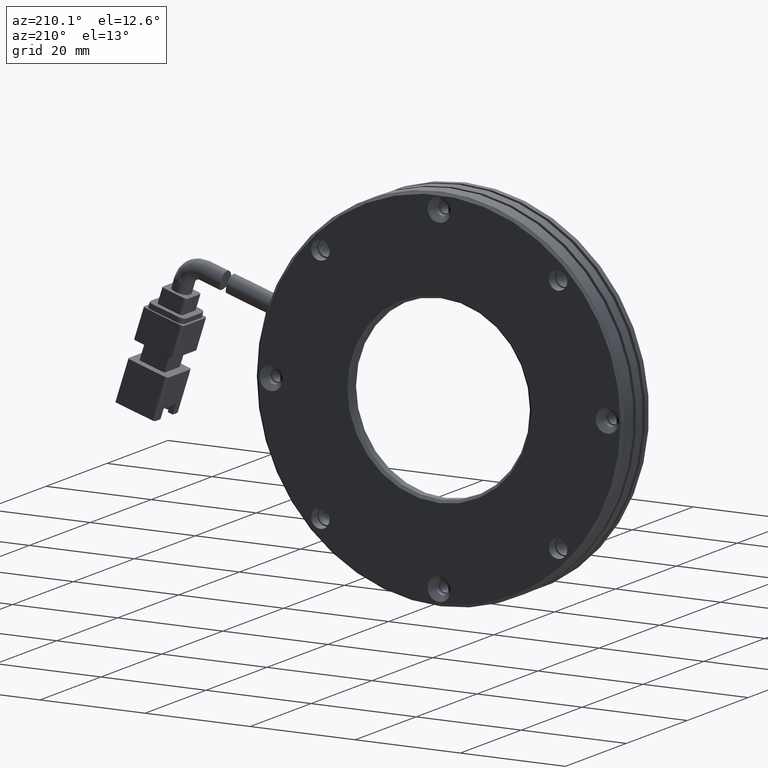
[diagram: clean part render]
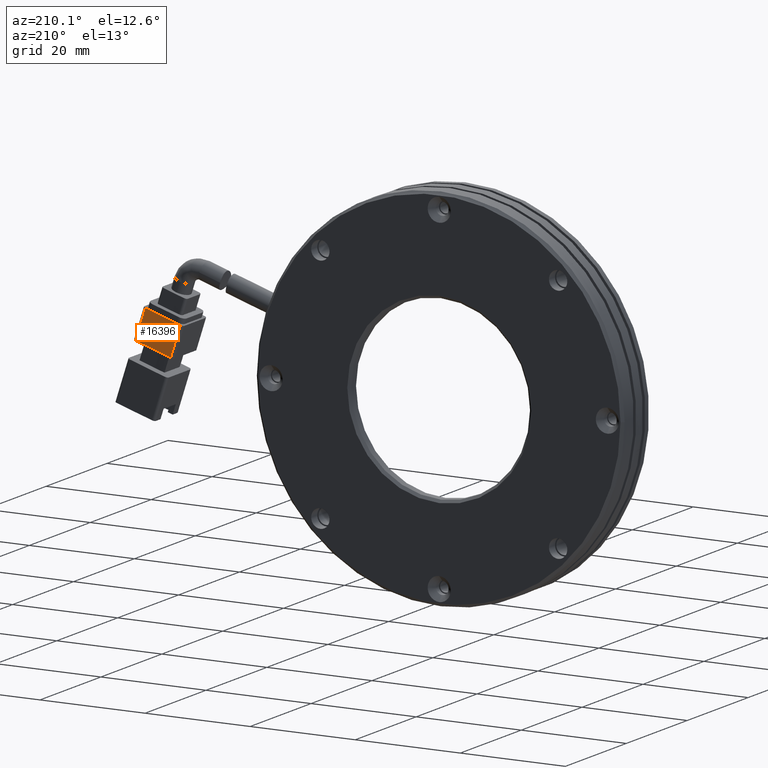
[diagram: same view with one face highlighted and labeled with its STEP entity id]
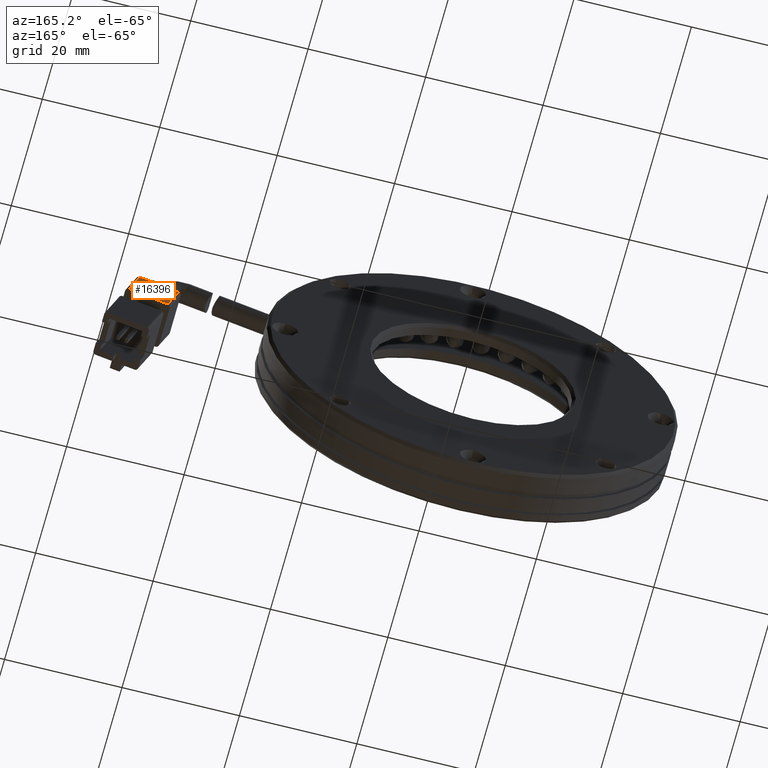
[diagram: same view with one face highlighted and labeled with its STEP entity id]
A machine part, auxiliary view. The second image highlights one B-rep face of the part: STEP entity #16396.
A second angle (auxiliary view) of the same face is appended — the face is thin or edge-on in the first view.
In plain terms, the highlighted planar face has unit normal (0, -1, 0).
Its self-contained STEP definition (entity closure, byte-faithful):
#621 = FACE_OUTER_BOUND ( 'NONE', #26089, .T. ) ;
#1486 = AXIS2_PLACEMENT_3D ( 'NONE', #7981, #29736, #11054 ) ;
#1531 = VERTEX_POINT ( 'NONE', #31466 ) ;
#2356 = DIRECTION ( 'NONE',  ( -0.3090169943749484500, -1.468953706219519500E-018, 0.9510565162951532000 ) ) ;
#2591 = EDGE_CURVE ( 'NONE', #1531, #27595, #25185, .T. ) ;
#2598 = CARTESIAN_POINT ( 'NONE',  ( 50.80655397514612300, 12.26020291540427500, 8.899951535528179700 ) ) ;
#3071 = LINE ( 'NONE', #9842, #18517 ) ;
#7981 = CARTESIAN_POINT ( 'NONE',  ( 50.80655397514612300, 12.26020291540427500, 8.899951535528179700 ) ) ;
#8672 = VECTOR ( 'NONE', #2356, 1000.000000000000100 ) ;
#9842 = CARTESIAN_POINT ( 'NONE',  ( 46.00326032732972000, 12.26020291540427300, 1.030493477132618400 ) ) ;
#9883 = EDGE_CURVE ( 'NONE', #38528, #1531, #3071, .T. ) ;
#9978 = DIRECTION ( 'NONE',  ( 0.3090169943749484500, 1.468953706219519500E-018, -0.9510565162951532000 ) ) ;
#11054 = DIRECTION ( 'NONE',  ( 0.9510565162951532000, 2.478176394252586100E-016, 0.3090169943749484500 ) ) ;
#16066 = LINE ( 'NONE', #27652, #24329 ) ;
#16080 = DIRECTION ( 'NONE',  ( 0.9510565162951532000, 7.511771070445336200E-017, 0.3090169943749484500 ) ) ;
#16396 = ADVANCED_FACE ( 'NONE', ( #621 ), #35448, .F. ) ;
#18461 = CARTESIAN_POINT ( 'NONE',  ( 44.14915836108004800, 12.26020291540427500, 6.736832574903543100 ) ) ;
#18517 = VECTOR ( 'NONE', #16080, 1000.000000000000100 ) ;
#19107 = EDGE_CURVE ( 'NONE', #27595, #35139, #16066, .T. ) ;
#24329 = VECTOR ( 'NONE', #33956, 1000.000000000000100 ) ;
#25185 = LINE ( 'NONE', #2598, #8672 ) ;
#25391 = ORIENTED_EDGE ( 'NONE', *, *, #2591, .F. ) ;
#26089 = EDGE_LOOP ( 'NONE', ( #27415, #28786, #25391, #38580 ) ) ;
#26773 = CARTESIAN_POINT ( 'NONE',  ( 50.80655397514612300, 12.26020291540427500, 8.899951535528179700 ) ) ;
#27415 = ORIENTED_EDGE ( 'NONE', *, *, #30615, .F. ) ;
#27595 = VERTEX_POINT ( 'NONE', #26773 ) ;
#27652 = CARTESIAN_POINT ( 'NONE',  ( 50.80655397514612300, 12.26020291540427500, 8.899951535528179700 ) ) ;
#28598 = CARTESIAN_POINT ( 'NONE',  ( 44.14915836108004800, 12.26020291540427500, 6.736832574903542300 ) ) ;
#28786 = ORIENTED_EDGE ( 'NONE', *, *, #19107, .F. ) ;
#29736 = DIRECTION ( 'NONE',  ( 2.361425124874468300E-016, -1.000000000000000000, 7.518280409385217600E-017 ) ) ;
#30615 = EDGE_CURVE ( 'NONE', #35139, #38528, #32714, .T. ) ;
#31466 = CARTESIAN_POINT ( 'NONE',  ( 52.66065594139581700, 12.26020291540427500, 3.193612437757253500 ) ) ;
#32714 = LINE ( 'NONE', #28598, #37602 ) ;
#33956 = DIRECTION ( 'NONE',  ( -0.9510565162951532000, -2.478176394252586100E-016, -0.3090169943749484500 ) ) ;
#35139 = VERTEX_POINT ( 'NONE', #18461 ) ;
#35448 = PLANE ( 'NONE',  #1486 ) ;
#37602 = VECTOR ( 'NONE', #9978, 1000.000000000000100 ) ;
#38032 = CARTESIAN_POINT ( 'NONE',  ( 46.00326032732973400, 12.26020291540427300, 1.030493477132637300 ) ) ;
#38528 = VERTEX_POINT ( 'NONE', #38032 ) ;
#38580 = ORIENTED_EDGE ( 'NONE', *, *, #9883, .F. ) ;